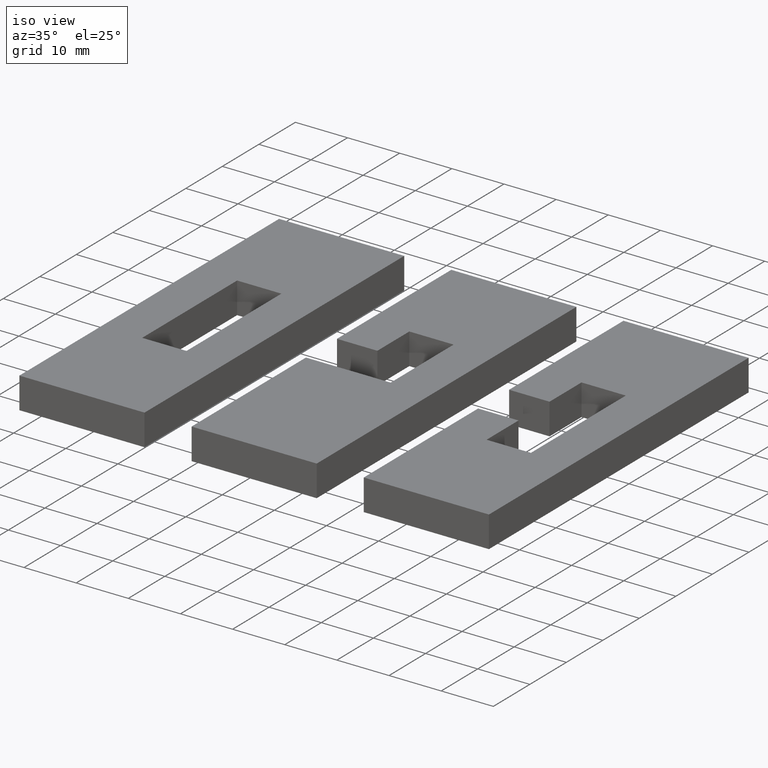
[diagram: clean part render]
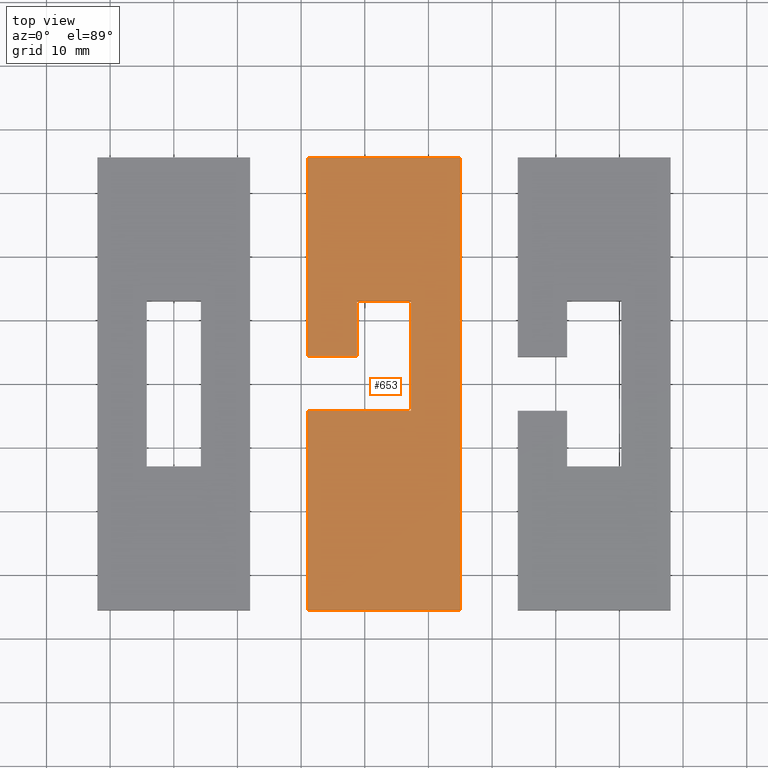
[diagram: tour spotlight — one face highlighted and labeled with its STEP entity id]
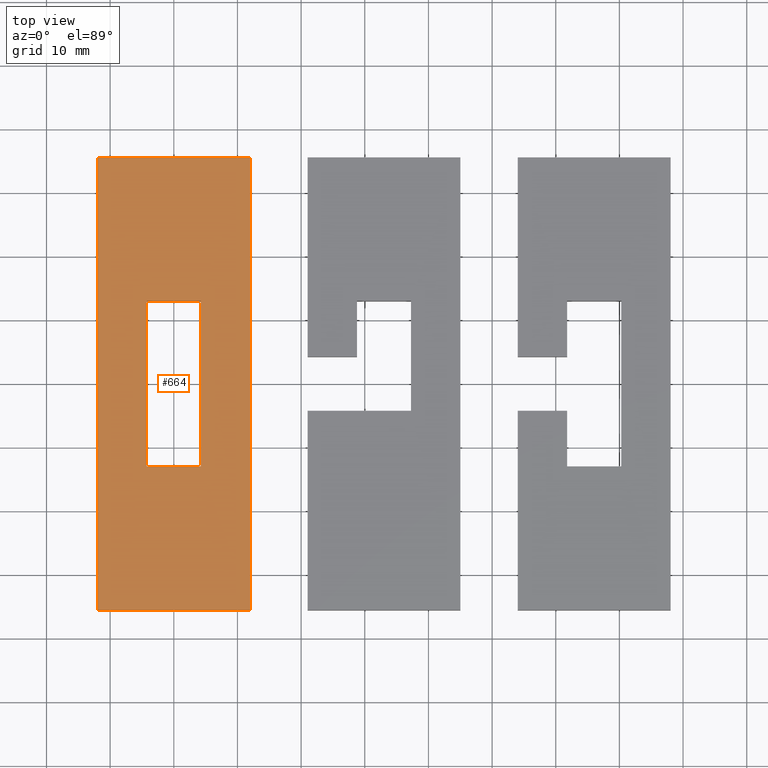
[diagram: tour spotlight — one face highlighted and labeled with its STEP entity id]
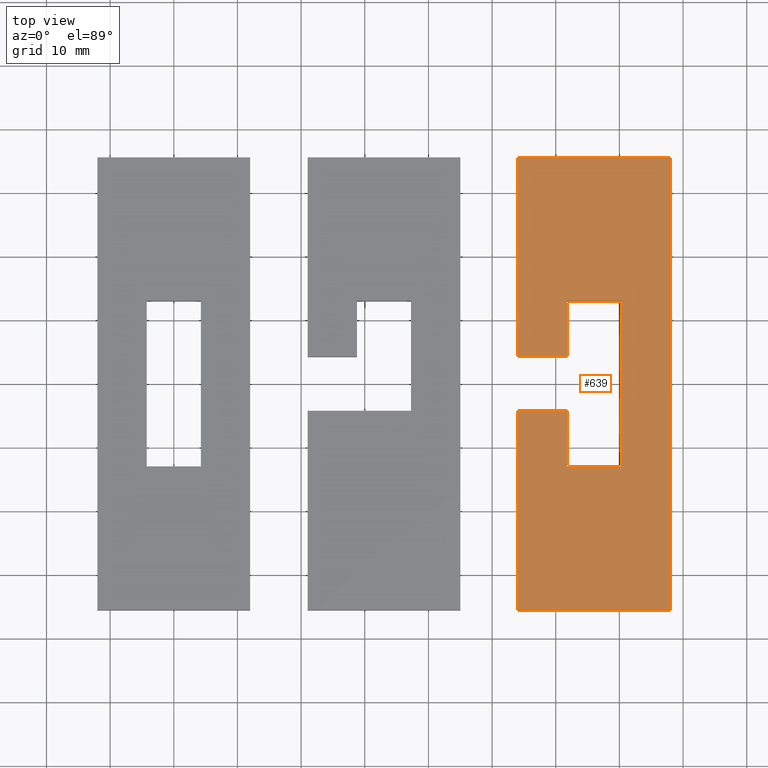
[diagram: tour spotlight — one face highlighted and labeled with its STEP entity id]
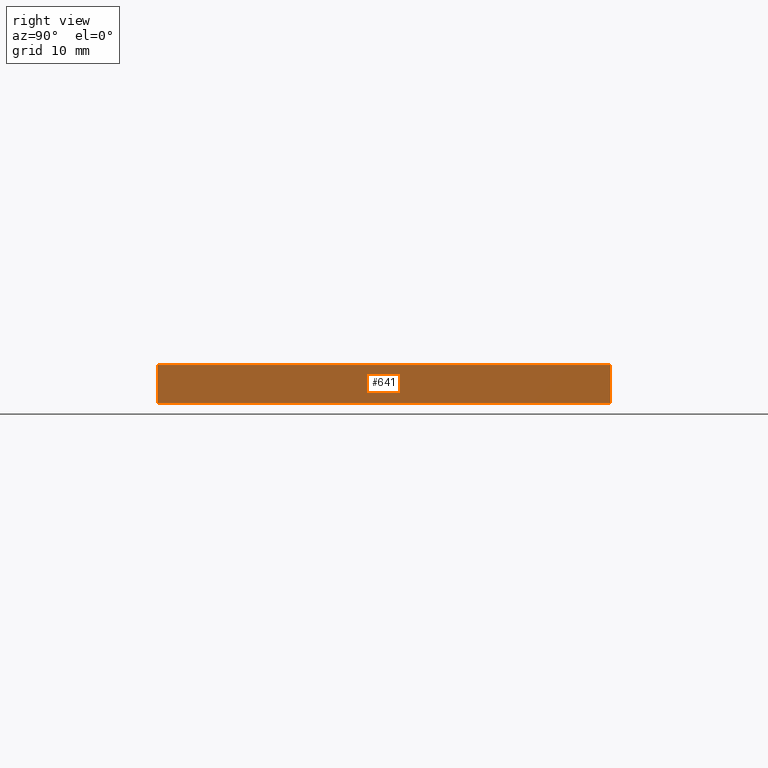
[diagram: tour spotlight — one face highlighted and labeled with its STEP entity id]
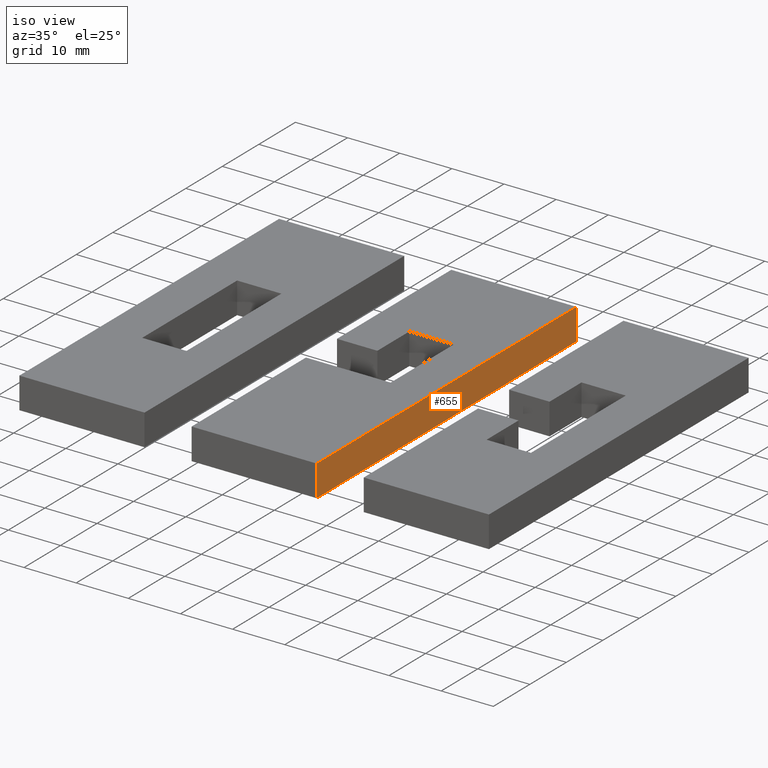
[diagram: tour spotlight — one face highlighted and labeled with its STEP entity id]
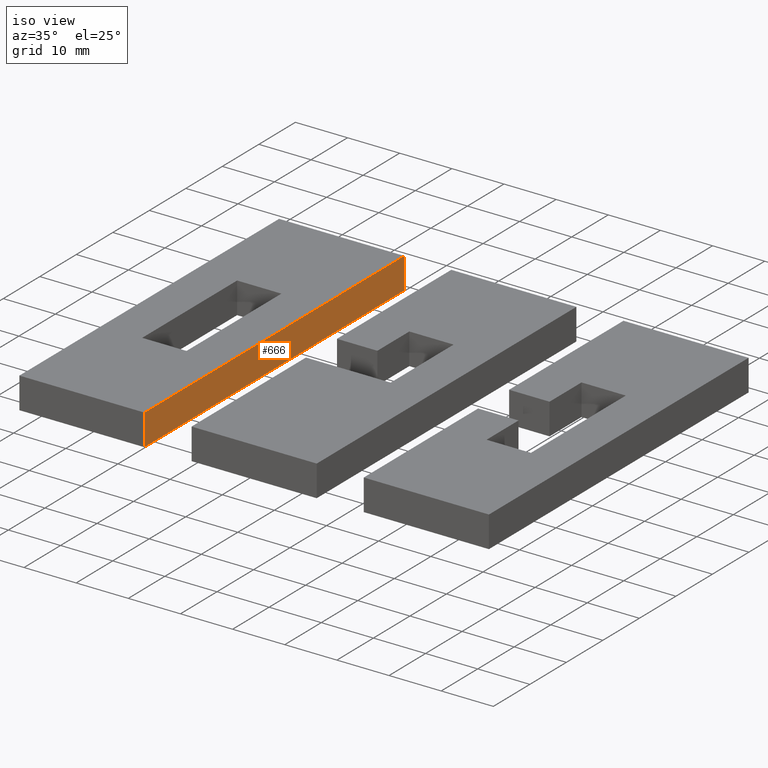
[diagram: tour spotlight — one face highlighted and labeled with its STEP entity id]
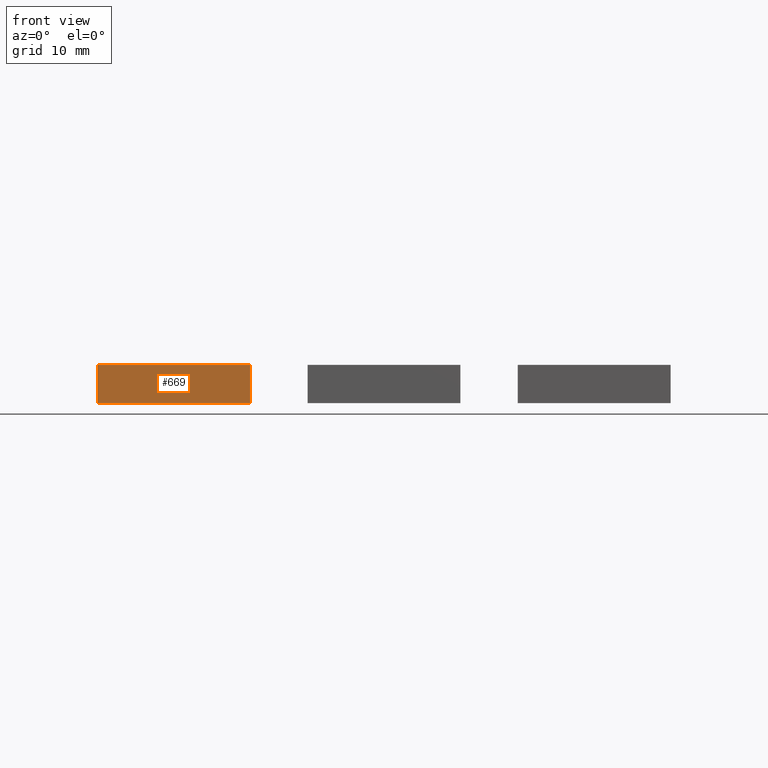
[diagram: tour spotlight — one face highlighted and labeled with its STEP entity id]
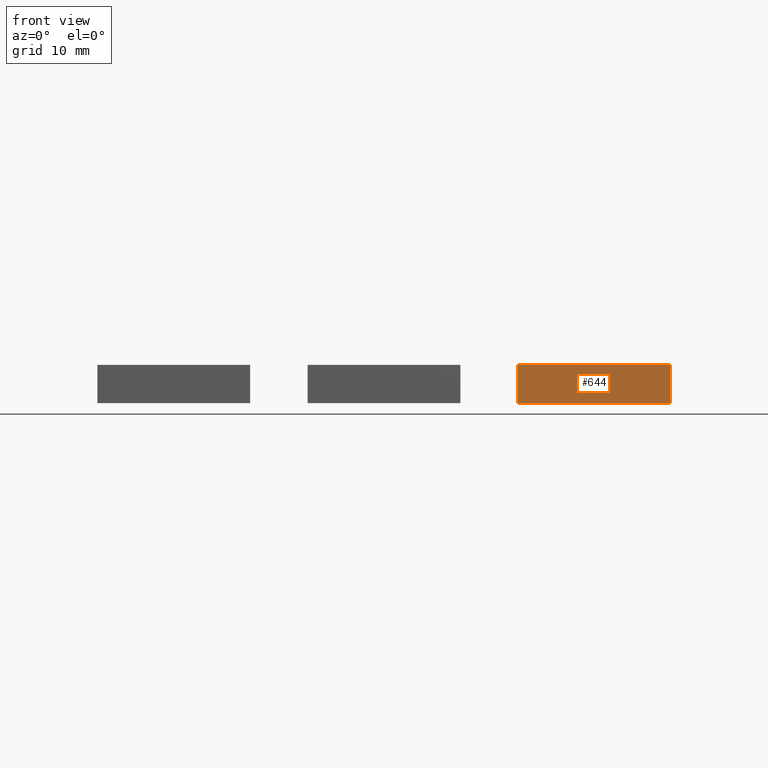
[diagram: tour spotlight — one face highlighted and labeled with its STEP entity id]
A machine part: a face-by-face anatomy tour. The part has 36 B-rep faces; the first image is the clean iso view, then the 8 largest visible faces are spotlighted one at a time (largest first), each with its STEP entity span.

Face 1 — top view, entity #653. In plain terms, the highlighted planar face has unit normal (0, 0, 1).
Definition (entity closure, byte-faithful):
#92=ORIENTED_EDGE('',*,*,#236,.T.);
#93=ORIENTED_EDGE('',*,*,#237,.T.);
#94=ORIENTED_EDGE('',*,*,#235,.T.);
#95=ORIENTED_EDGE('',*,*,#238,.F.);
#96=ORIENTED_EDGE('',*,*,#239,.F.);
#97=ORIENTED_EDGE('',*,*,#240,.T.);
#98=ORIENTED_EDGE('',*,*,#241,.T.);
#99=ORIENTED_EDGE('',*,*,#242,.F.);
#100=ORIENTED_EDGE('',*,*,#243,.F.);
#101=ORIENTED_EDGE('',*,*,#244,.F.);
#235=EDGE_CURVE('',#311,#313,#385,.T.);
#236=EDGE_CURVE('',#314,#315,#386,.T.);
#237=EDGE_CURVE('',#315,#311,#387,.T.);
#238=EDGE_CURVE('',#316,#313,#388,.T.);
#239=EDGE_CURVE('',#317,#316,#389,.T.);
#240=EDGE_CURVE('',#317,#318,#390,.T.);
#241=EDGE_CURVE('',#318,#319,#391,.T.);
#242=EDGE_CURVE('',#320,#319,#392,.T.);
#243=EDGE_CURVE('',#321,#320,#393,.T.);
#244=EDGE_CURVE('',#314,#321,#394,.T.);
#311=VERTEX_POINT('',#994);
#313=VERTEX_POINT('',#998);
#314=VERTEX_POINT('',#1002);
#315=VERTEX_POINT('',#1003);
#316=VERTEX_POINT('',#1006);
#317=VERTEX_POINT('',#1008);
#318=VERTEX_POINT('',#1010);
#319=VERTEX_POINT('',#1012);
#320=VERTEX_POINT('',#1014);
#321=VERTEX_POINT('',#1016);
#385=LINE('',#999,#475);
#386=LINE('',#1001,#476);
#387=LINE('',#1004,#477);
#388=LINE('',#1005,#478);
#389=LINE('',#1007,#479);
#390=LINE('',#1009,#480);
#391=LINE('',#1011,#481);
#392=LINE('',#1013,#482);
#393=LINE('',#1015,#483);
#394=LINE('',#1017,#484);
#475=VECTOR('',#820,1.);
#476=VECTOR('',#823,1.);
#477=VECTOR('',#824,1.);
#478=VECTOR('',#825,1.);
#479=VECTOR('',#826,1.);
#480=VECTOR('',#827,1.);
#481=VECTOR('',#828,1.);
#482=VECTOR('',#829,1.);
#483=VECTOR('',#830,1.);
#484=VECTOR('',#831,1.);
#541=EDGE_LOOP('',(#92,#93,#94,#95,#96,#97,#98,#99,#100,#101));
#579=FACE_BOUND('',#541,.T.);
#617=PLANE('',#725);
#653=ADVANCED_FACE('',(#579),#617,.T.);
#725=AXIS2_PLACEMENT_3D('',#1000,#821,#822);
#820=DIRECTION('',(2.92697999321171E-16,-1.,0.));
#821=DIRECTION('',(0.,0.,1.));
#822=DIRECTION('',(1.,0.,0.));
#823=DIRECTION('',(0.,-1.,0.));
#824=DIRECTION('',(-1.,0.,0.));
#825=DIRECTION('',(-1.,0.,0.));
#826=DIRECTION('',(3.90263999094895E-16,-1.,0.));
#827=DIRECTION('',(-1.,0.,0.));
#828=DIRECTION('',(2.92697999321171E-16,-1.,0.));
#829=DIRECTION('',(-1.,0.,0.));
#830=DIRECTION('',(0.,-1.,0.));
#831=DIRECTION('',(-1.,0.,0.));
#994=CARTESIAN_POINT('',(0.02102,-0.00425,0.006));
#998=CARTESIAN_POINT('',(0.02102,-0.03556,0.006));
#999=CARTESIAN_POINT('',(0.02102,-6.93889390390723E-18,0.006));
#1000=CARTESIAN_POINT('',(0.03302,0.,0.006));
#1001=CARTESIAN_POINT('',(0.03727,-7.80625564189563E-18,0.006));
#1002=CARTESIAN_POINT('',(0.03727,0.013,0.006));
#1003=CARTESIAN_POINT('',(0.03727,-0.00425,0.006));
#1004=CARTESIAN_POINT('',(0.02452,-0.00425,0.006));
#1005=CARTESIAN_POINT('',(0.03302,-0.03556,0.006));
#1006=CARTESIAN_POINT('',(0.04502,-0.03556,0.006));
#1007=CARTESIAN_POINT('',(0.04502,6.93889390390723E-18,0.006));
#1008=CARTESIAN_POINT('',(0.04502,0.03556,0.006));
#1009=CARTESIAN_POINT('',(0.03302,0.03556,0.006));
#1010=CARTESIAN_POINT('',(0.02102,0.03556,0.006));
#1011=CARTESIAN_POINT('',(0.02102,-6.93889390390723E-18,0.006));
#1012=CARTESIAN_POINT('',(0.02102,0.00425,0.006));
#1013=CARTESIAN_POINT('',(0.02452,0.00425,0.006));
#1014=CARTESIAN_POINT('',(0.02877,0.00425,0.006));
#1015=CARTESIAN_POINT('',(0.02877,0.008625,0.006));
#1016=CARTESIAN_POINT('',(0.02877,0.013,0.006));
#1017=CARTESIAN_POINT('',(0.03302,0.013,0.006));

Face 2 — top view, entity #664. In plain terms, the highlighted planar face has unit normal (0, 0, 1).
Definition (entity closure, byte-faithful):
#148=ORIENTED_EDGE('',*,*,#262,.F.);
#149=ORIENTED_EDGE('',*,*,#263,.T.);
#150=ORIENTED_EDGE('',*,*,#264,.T.);
#151=ORIENTED_EDGE('',*,*,#265,.F.);
#152=ORIENTED_EDGE('',*,*,#266,.F.);
#153=ORIENTED_EDGE('',*,*,#267,.T.);
#154=ORIENTED_EDGE('',*,*,#268,.T.);
#155=ORIENTED_EDGE('',*,*,#269,.F.);
#262=EDGE_CURVE('',#330,#331,#412,.T.);
#263=EDGE_CURVE('',#330,#332,#413,.T.);
#264=EDGE_CURVE('',#332,#333,#414,.T.);
#265=EDGE_CURVE('',#331,#333,#415,.T.);
#266=EDGE_CURVE('',#334,#335,#416,.T.);
#267=EDGE_CURVE('',#334,#336,#417,.T.);
#268=EDGE_CURVE('',#336,#337,#418,.T.);
#269=EDGE_CURVE('',#335,#337,#419,.T.);
#330=VERTEX_POINT('',#1056);
#331=VERTEX_POINT('',#1057);
#332=VERTEX_POINT('',#1059);
#333=VERTEX_POINT('',#1061);
#334=VERTEX_POINT('',#1064);
#335=VERTEX_POINT('',#1065);
#336=VERTEX_POINT('',#1067);
#337=VERTEX_POINT('',#1069);
#412=LINE('',#1055,#502);
#413=LINE('',#1058,#503);
#414=LINE('',#1060,#504);
#415=LINE('',#1062,#505);
#416=LINE('',#1063,#506);
#417=LINE('',#1066,#507);
#418=LINE('',#1068,#508);
#419=LINE('',#1070,#509);
#502=VECTOR('',#873,1.);
#503=VECTOR('',#874,1.);
#504=VECTOR('',#875,1.);
#505=VECTOR('',#876,1.);
#506=VECTOR('',#877,1.);
#507=VECTOR('',#878,1.);
#508=VECTOR('',#879,1.);
#509=VECTOR('',#880,1.);
#552=EDGE_LOOP('',(#148,#149,#150,#151));
#553=EDGE_LOOP('',(#152,#153,#154,#155));
#590=FACE_BOUND('',#552,.T.);
#591=FACE_BOUND('',#553,.T.);
#628=PLANE('',#737);
#664=ADVANCED_FACE('',(#590,#591),#628,.T.);
#737=AXIS2_PLACEMENT_3D('',#1054,#871,#872);
#871=DIRECTION('',(0.,0.,1.));
#872=DIRECTION('',(1.,0.,0.));
#873=DIRECTION('',(3.17089499264602E-16,-1.,0.));
#874=DIRECTION('',(-1.,0.,0.));
#875=DIRECTION('',(3.17089499264602E-16,-1.,0.));
#876=DIRECTION('',(-1.,0.,0.));
#877=DIRECTION('',(-1.,0.,0.));
#878=DIRECTION('',(-2.00160401074247E-16,-1.,0.));
#879=DIRECTION('',(-1.,0.,0.));
#880=DIRECTION('',(-2.00160401074247E-16,-1.,0.));
#1054=CARTESIAN_POINT('',(0.03302,0.,0.006));
#1055=CARTESIAN_POINT('',(0.012,6.93889390390723E-18,0.006));
#1056=CARTESIAN_POINT('',(0.012,0.03556,0.006));
#1057=CARTESIAN_POINT('',(0.012,-0.03556,0.006));
#1058=CARTESIAN_POINT('',(-1.04083408558608E-17,0.03556,0.006));
#1059=CARTESIAN_POINT('',(-0.012,0.03556,0.006));
#1060=CARTESIAN_POINT('',(-0.012,-6.93889390390723E-18,0.006));
#1061=CARTESIAN_POINT('',(-0.012,-0.03556,0.006));
#1062=CARTESIAN_POINT('',(1.21430643318376E-17,-0.03556,0.006));
#1063=CARTESIAN_POINT('',(-1.7347234759768E-18,0.013,0.006));
#1064=CARTESIAN_POINT('',(0.00425,0.013,0.006));
#1065=CARTESIAN_POINT('',(-0.00425,0.013,0.006));
#1066=CARTESIAN_POINT('',(0.00425,-6.93889390390723E-18,0.006));
#1067=CARTESIAN_POINT('',(0.00425,-0.013,0.006));
#1068=CARTESIAN_POINT('',(-6.93889390390723E-18,-0.013,0.006));
#1069=CARTESIAN_POINT('',(-0.00425,-0.013,0.006));
#1070=CARTESIAN_POINT('',(-0.00425,-6.93889390390723E-18,0.006));

Face 3 — top view, entity #639. In plain terms, the highlighted planar face has unit normal (0, 0, 1).
Definition (entity closure, byte-faithful):
#20=ORIENTED_EDGE('',*,*,#200,.F.);
#21=ORIENTED_EDGE('',*,*,#201,.T.);
#22=ORIENTED_EDGE('',*,*,#199,.T.);
#23=ORIENTED_EDGE('',*,*,#202,.F.);
#24=ORIENTED_EDGE('',*,*,#203,.F.);
#25=ORIENTED_EDGE('',*,*,#204,.T.);
#26=ORIENTED_EDGE('',*,*,#205,.T.);
#27=ORIENTED_EDGE('',*,*,#206,.F.);
#28=ORIENTED_EDGE('',*,*,#207,.F.);
#29=ORIENTED_EDGE('',*,*,#208,.F.);
#30=ORIENTED_EDGE('',*,*,#209,.T.);
#31=ORIENTED_EDGE('',*,*,#210,.T.);
#199=EDGE_CURVE('',#287,#289,#349,.T.);
#200=EDGE_CURVE('',#290,#291,#350,.T.);
#201=EDGE_CURVE('',#290,#287,#351,.T.);
#202=EDGE_CURVE('',#292,#289,#352,.T.);
#203=EDGE_CURVE('',#293,#292,#353,.T.);
#204=EDGE_CURVE('',#293,#294,#354,.T.);
#205=EDGE_CURVE('',#294,#295,#355,.T.);
#206=EDGE_CURVE('',#296,#295,#356,.T.);
#207=EDGE_CURVE('',#297,#296,#357,.T.);
#208=EDGE_CURVE('',#298,#297,#358,.T.);
#209=EDGE_CURVE('',#298,#299,#359,.T.);
#210=EDGE_CURVE('',#299,#291,#360,.T.);
#287=VERTEX_POINT('',#919);
#289=VERTEX_POINT('',#923);
#290=VERTEX_POINT('',#927);
#291=VERTEX_POINT('',#928);
#292=VERTEX_POINT('',#931);
#293=VERTEX_POINT('',#933);
#294=VERTEX_POINT('',#935);
#295=VERTEX_POINT('',#937);
#296=VERTEX_POINT('',#939);
#297=VERTEX_POINT('',#941);
#298=VERTEX_POINT('',#943);
#299=VERTEX_POINT('',#945);
#349=LINE('',#924,#439);
#350=LINE('',#926,#440);
#351=LINE('',#929,#441);
#352=LINE('',#930,#442);
#353=LINE('',#932,#443);
#354=LINE('',#934,#444);
#355=LINE('',#936,#445);
#356=LINE('',#938,#446);
#357=LINE('',#940,#447);
#358=LINE('',#942,#448);
#359=LINE('',#944,#449);
#360=LINE('',#946,#450);
#439=VECTOR('',#754,1.);
#440=VECTOR('',#757,1.);
#441=VECTOR('',#758,1.);
#442=VECTOR('',#759,1.);
#443=VECTOR('',#760,1.);
#444=VECTOR('',#761,1.);
#445=VECTOR('',#762,1.);
#446=VECTOR('',#763,1.);
#447=VECTOR('',#764,1.);
#448=VECTOR('',#765,1.);
#449=VECTOR('',#766,1.);
#450=VECTOR('',#767,1.);
#527=EDGE_LOOP('',(#20,#21,#22,#23,#24,#25,#26,#27,#28,#29,#30,#31));
#565=FACE_BOUND('',#527,.T.);
#603=PLANE('',#710);
#639=ADVANCED_FACE('',(#565),#603,.T.);
#710=AXIS2_PLACEMENT_3D('',#925,#755,#756);
#754=DIRECTION('',(3.90263999094895E-16,-1.,0.));
#755=DIRECTION('',(0.,0.,1.));
#756=DIRECTION('',(1.,0.,0.));
#757=DIRECTION('',(0.,-1.,0.));
#758=DIRECTION('',(-1.,0.,0.));
#759=DIRECTION('',(-1.,0.,0.));
#760=DIRECTION('',(3.90263999094895E-16,-1.,0.));
#761=DIRECTION('',(-1.,0.,0.));
#762=DIRECTION('',(3.90263999094895E-16,-1.,0.));
#763=DIRECTION('',(-1.,0.,0.));
#764=DIRECTION('',(0.,-1.,0.));
#765=DIRECTION('',(-1.,0.,0.));
#766=DIRECTION('',(0.,-1.,0.));
#767=DIRECTION('',(-1.,0.,0.));
#919=CARTESIAN_POINT('',(0.05404,-0.00425,0.006));
#923=CARTESIAN_POINT('',(0.05404,-0.03556,0.006));
#924=CARTESIAN_POINT('',(0.05404,-6.93889390390723E-18,0.006));
#925=CARTESIAN_POINT('',(0.03302,0.,0.006));
#926=CARTESIAN_POINT('',(0.06179,-0.008625,0.006));
#927=CARTESIAN_POINT('',(0.06179,-0.00425,0.006));
#928=CARTESIAN_POINT('',(0.06179,-0.013,0.006));
#929=CARTESIAN_POINT('',(0.05754,-0.00425,0.006));
#930=CARTESIAN_POINT('',(0.06604,-0.03556,0.006));
#931=CARTESIAN_POINT('',(0.07804,-0.03556,0.006));
#932=CARTESIAN_POINT('',(0.07804,6.93889390390723E-18,0.006));
#933=CARTESIAN_POINT('',(0.07804,0.03556,0.006));
#934=CARTESIAN_POINT('',(0.06604,0.03556,0.006));
#935=CARTESIAN_POINT('',(0.05404,0.03556,0.006));
#936=CARTESIAN_POINT('',(0.05404,-6.93889390390723E-18,0.006));
#937=CARTESIAN_POINT('',(0.05404,0.00425,0.006));
#938=CARTESIAN_POINT('',(0.05754,0.00425,0.006));
#939=CARTESIAN_POINT('',(0.06179,0.00425,0.006));
#940=CARTESIAN_POINT('',(0.06179,0.008625,0.006));
#941=CARTESIAN_POINT('',(0.06179,0.013,0.006));
#942=CARTESIAN_POINT('',(0.06604,0.013,0.006));
#943=CARTESIAN_POINT('',(0.07029,0.013,0.006));
#944=CARTESIAN_POINT('',(0.07029,-1.7347234759768E-18,0.006));
#945=CARTESIAN_POINT('',(0.07029,-0.013,0.006));
#946=CARTESIAN_POINT('',(0.06604,-0.013,0.006));

Face 4 — right view, entity #641. In plain terms, the highlighted planar face has unit normal (1, 0, 0).
Definition (entity closure, byte-faithful):
#44=ORIENTED_EDGE('',*,*,#220,.F.);
#45=ORIENTED_EDGE('',*,*,#222,.F.);
#46=ORIENTED_EDGE('',*,*,#203,.T.);
#47=ORIENTED_EDGE('',*,*,#223,.T.);
#203=EDGE_CURVE('',#293,#292,#353,.T.);
#220=EDGE_CURVE('',#308,#309,#370,.T.);
#222=EDGE_CURVE('',#293,#308,#372,.T.);
#223=EDGE_CURVE('',#292,#309,#373,.T.);
#292=VERTEX_POINT('',#931);
#293=VERTEX_POINT('',#933);
#308=VERTEX_POINT('',#965);
#309=VERTEX_POINT('',#967);
#353=LINE('',#932,#443);
#370=LINE('',#966,#460);
#372=LINE('',#970,#462);
#373=LINE('',#971,#463);
#443=VECTOR('',#760,1.);
#460=VECTOR('',#779,1.);
#462=VECTOR('',#783,1.);
#463=VECTOR('',#784,1.);
#529=EDGE_LOOP('',(#44,#45,#46,#47));
#567=FACE_BOUND('',#529,.T.);
#605=PLANE('',#712);
#641=ADVANCED_FACE('',(#567),#605,.T.);
#712=AXIS2_PLACEMENT_3D('',#969,#781,#782);
#760=DIRECTION('',(3.90263999094895E-16,-1.,0.));
#779=DIRECTION('',(3.90263999094895E-16,-1.,0.));
#781=DIRECTION('',(1.,3.90263999094895E-16,0.));
#782=DIRECTION('',(-3.90263999094895E-16,1.,0.));
#783=DIRECTION('',(0.,0.,-1.));
#784=DIRECTION('',(0.,0.,-1.));
#931=CARTESIAN_POINT('',(0.07804,-0.03556,0.006));
#932=CARTESIAN_POINT('',(0.07804,6.93889390390723E-18,0.006));
#933=CARTESIAN_POINT('',(0.07804,0.03556,0.006));
#965=CARTESIAN_POINT('',(0.07804,0.03556,0.));
#966=CARTESIAN_POINT('',(0.07804,6.93889390390723E-18,0.));
#967=CARTESIAN_POINT('',(0.07804,-0.03556,0.));
#969=CARTESIAN_POINT('',(0.07804,6.93889390390723E-18,0.006));
#970=CARTESIAN_POINT('',(0.07804,0.03556,0.006));
#971=CARTESIAN_POINT('',(0.07804,-0.03556,0.006));

Face 5 — iso view, entity #655. In plain terms, the highlighted planar face has unit normal (1, 0, 0).
Definition (entity closure, byte-faithful):
#112=ORIENTED_EDGE('',*,*,#252,.F.);
#113=ORIENTED_EDGE('',*,*,#254,.F.);
#114=ORIENTED_EDGE('',*,*,#239,.T.);
#115=ORIENTED_EDGE('',*,*,#255,.T.);
#239=EDGE_CURVE('',#317,#316,#389,.T.);
#252=EDGE_CURVE('',#328,#329,#402,.T.);
#254=EDGE_CURVE('',#317,#328,#404,.T.);
#255=EDGE_CURVE('',#316,#329,#405,.T.);
#316=VERTEX_POINT('',#1006);
#317=VERTEX_POINT('',#1008);
#328=VERTEX_POINT('',#1032);
#329=VERTEX_POINT('',#1034);
#389=LINE('',#1007,#479);
#402=LINE('',#1033,#492);
#404=LINE('',#1037,#494);
#405=LINE('',#1038,#495);
#479=VECTOR('',#826,1.);
#492=VECTOR('',#841,1.);
#494=VECTOR('',#845,1.);
#495=VECTOR('',#846,1.);
#543=EDGE_LOOP('',(#112,#113,#114,#115));
#581=FACE_BOUND('',#543,.T.);
#619=PLANE('',#727);
#655=ADVANCED_FACE('',(#581),#619,.T.);
#727=AXIS2_PLACEMENT_3D('',#1036,#843,#844);
#826=DIRECTION('',(3.90263999094895E-16,-1.,0.));
#841=DIRECTION('',(3.90263999094895E-16,-1.,0.));
#843=DIRECTION('',(1.,3.90263999094895E-16,0.));
#844=DIRECTION('',(-3.90263999094895E-16,1.,0.));
#845=DIRECTION('',(0.,0.,-1.));
#846=DIRECTION('',(0.,0.,-1.));
#1006=CARTESIAN_POINT('',(0.04502,-0.03556,0.006));
#1007=CARTESIAN_POINT('',(0.04502,6.93889390390723E-18,0.006));
#1008=CARTESIAN_POINT('',(0.04502,0.03556,0.006));
#1032=CARTESIAN_POINT('',(0.04502,0.03556,0.));
#1033=CARTESIAN_POINT('',(0.04502,6.93889390390723E-18,0.));
#1034=CARTESIAN_POINT('',(0.04502,-0.03556,0.));
#1036=CARTESIAN_POINT('',(0.04502,6.93889390390723E-18,0.006));
#1037=CARTESIAN_POINT('',(0.04502,0.03556,0.006));
#1038=CARTESIAN_POINT('',(0.04502,-0.03556,0.006));

Face 6 — iso view, entity #666. In plain terms, the highlighted planar face has unit normal (1, 0, 0).
Definition (entity closure, byte-faithful):
#164=ORIENTED_EDGE('',*,*,#270,.F.);
#165=ORIENTED_EDGE('',*,*,#278,.F.);
#166=ORIENTED_EDGE('',*,*,#262,.T.);
#167=ORIENTED_EDGE('',*,*,#279,.T.);
#262=EDGE_CURVE('',#330,#331,#412,.T.);
#270=EDGE_CURVE('',#338,#339,#420,.T.);
#278=EDGE_CURVE('',#330,#338,#428,.T.);
#279=EDGE_CURVE('',#331,#339,#429,.T.);
#330=VERTEX_POINT('',#1056);
#331=VERTEX_POINT('',#1057);
#338=VERTEX_POINT('',#1073);
#339=VERTEX_POINT('',#1074);
#412=LINE('',#1055,#502);
#420=LINE('',#1072,#510);
#428=LINE('',#1089,#518);
#429=LINE('',#1090,#519);
#502=VECTOR('',#873,1.);
#510=VECTOR('',#883,1.);
#518=VECTOR('',#893,1.);
#519=VECTOR('',#894,1.);
#556=EDGE_LOOP('',(#164,#165,#166,#167));
#594=FACE_BOUND('',#556,.T.);
#630=PLANE('',#739);
#666=ADVANCED_FACE('',(#594),#630,.T.);
#739=AXIS2_PLACEMENT_3D('',#1088,#891,#892);
#873=DIRECTION('',(3.17089499264602E-16,-1.,0.));
#883=DIRECTION('',(3.17089499264602E-16,-1.,0.));
#891=DIRECTION('',(1.,3.17089499264602E-16,0.));
#892=DIRECTION('',(-3.17089499264602E-16,1.,0.));
#893=DIRECTION('',(0.,0.,-1.));
#894=DIRECTION('',(0.,0.,-1.));
#1055=CARTESIAN_POINT('',(0.012,6.93889390390723E-18,0.006));
#1056=CARTESIAN_POINT('',(0.012,0.03556,0.006));
#1057=CARTESIAN_POINT('',(0.012,-0.03556,0.006));
#1072=CARTESIAN_POINT('',(0.012,6.93889390390723E-18,0.));
#1073=CARTESIAN_POINT('',(0.012,0.03556,0.));
#1074=CARTESIAN_POINT('',(0.012,-0.03556,0.));
#1088=CARTESIAN_POINT('',(0.012,6.93889390390723E-18,0.006));
#1089=CARTESIAN_POINT('',(0.012,0.03556,0.006));
#1090=CARTESIAN_POINT('',(0.012,-0.03556,0.006));

Face 7 — front view, entity #669. In plain terms, the highlighted planar face has unit normal (0, -1, 0).
Definition (entity closure, byte-faithful):
#176=ORIENTED_EDGE('',*,*,#271,.F.);
#177=ORIENTED_EDGE('',*,*,#279,.F.);
#178=ORIENTED_EDGE('',*,*,#265,.T.);
#179=ORIENTED_EDGE('',*,*,#281,.T.);
#265=EDGE_CURVE('',#331,#333,#415,.T.);
#271=EDGE_CURVE('',#339,#340,#421,.T.);
#279=EDGE_CURVE('',#331,#339,#429,.T.);
#281=EDGE_CURVE('',#333,#340,#431,.T.);
#331=VERTEX_POINT('',#1057);
#333=VERTEX_POINT('',#1061);
#339=VERTEX_POINT('',#1074);
#340=VERTEX_POINT('',#1076);
#415=LINE('',#1062,#505);
#421=LINE('',#1075,#511);
#429=LINE('',#1090,#519);
#431=LINE('',#1094,#521);
#505=VECTOR('',#876,1.);
#511=VECTOR('',#884,1.);
#519=VECTOR('',#894,1.);
#521=VECTOR('',#900,1.);
#559=EDGE_LOOP('',(#176,#177,#178,#179));
#597=FACE_BOUND('',#559,.T.);
#633=PLANE('',#742);
#669=ADVANCED_FACE('',(#597),#633,.T.);
#742=AXIS2_PLACEMENT_3D('',#1095,#901,#902);
#876=DIRECTION('',(-1.,0.,0.));
#884=DIRECTION('',(-1.,0.,0.));
#894=DIRECTION('',(0.,0.,-1.));
#900=DIRECTION('',(0.,0.,-1.));
#901=DIRECTION('',(0.,-1.,0.));
#902=DIRECTION('',(0.,0.,-1.));
#1057=CARTESIAN_POINT('',(0.012,-0.03556,0.006));
#1061=CARTESIAN_POINT('',(-0.012,-0.03556,0.006));
#1062=CARTESIAN_POINT('',(1.21430643318376E-17,-0.03556,0.006));
#1074=CARTESIAN_POINT('',(0.012,-0.03556,0.));
#1075=CARTESIAN_POINT('',(1.21430643318376E-17,-0.03556,0.));
#1076=CARTESIAN_POINT('',(-0.012,-0.03556,0.));
#1090=CARTESIAN_POINT('',(0.012,-0.03556,0.006));
#1094=CARTESIAN_POINT('',(-0.012,-0.03556,0.006));
#1095=CARTESIAN_POINT('',(1.21430643318376E-17,-0.03556,0.006));

Face 8 — front view, entity #644. In plain terms, the highlighted planar face has unit normal (0, -1, 0).
Definition (entity closure, byte-faithful):
#56=ORIENTED_EDGE('',*,*,#221,.F.);
#57=ORIENTED_EDGE('',*,*,#223,.F.);
#58=ORIENTED_EDGE('',*,*,#202,.T.);
#59=ORIENTED_EDGE('',*,*,#198,.T.);
#198=EDGE_CURVE('',#289,#288,#348,.T.);
#202=EDGE_CURVE('',#292,#289,#352,.T.);
#221=EDGE_CURVE('',#309,#288,#371,.T.);
#223=EDGE_CURVE('',#292,#309,#373,.T.);
#288=VERTEX_POINT('',#921);
#289=VERTEX_POINT('',#923);
#292=VERTEX_POINT('',#931);
#309=VERTEX_POINT('',#967);
#348=LINE('',#922,#438);
#352=LINE('',#930,#442);
#371=LINE('',#968,#461);
#373=LINE('',#971,#463);
#438=VECTOR('',#753,1.);
#442=VECTOR('',#759,1.);
#461=VECTOR('',#780,1.);
#463=VECTOR('',#784,1.);
#532=EDGE_LOOP('',(#56,#57,#58,#59));
#570=FACE_BOUND('',#532,.T.);
#608=PLANE('',#715);
#644=ADVANCED_FACE('',(#570),#608,.T.);
#715=AXIS2_PLACEMENT_3D('',#976,#791,#792);
#753=DIRECTION('',(0.,0.,-1.));
#759=DIRECTION('',(-1.,0.,0.));
#780=DIRECTION('',(-1.,0.,0.));
#784=DIRECTION('',(0.,0.,-1.));
#791=DIRECTION('',(0.,-1.,0.));
#792=DIRECTION('',(0.,0.,-1.));
#921=CARTESIAN_POINT('',(0.05404,-0.03556,0.));
#922=CARTESIAN_POINT('',(0.05404,-0.03556,0.006));
#923=CARTESIAN_POINT('',(0.05404,-0.03556,0.006));
#930=CARTESIAN_POINT('',(0.06604,-0.03556,0.006));
#931=CARTESIAN_POINT('',(0.07804,-0.03556,0.006));
#967=CARTESIAN_POINT('',(0.07804,-0.03556,0.));
#968=CARTESIAN_POINT('',(0.06604,-0.03556,0.));
#971=CARTESIAN_POINT('',(0.07804,-0.03556,0.006));
#976=CARTESIAN_POINT('',(0.06604,-0.03556,0.006));